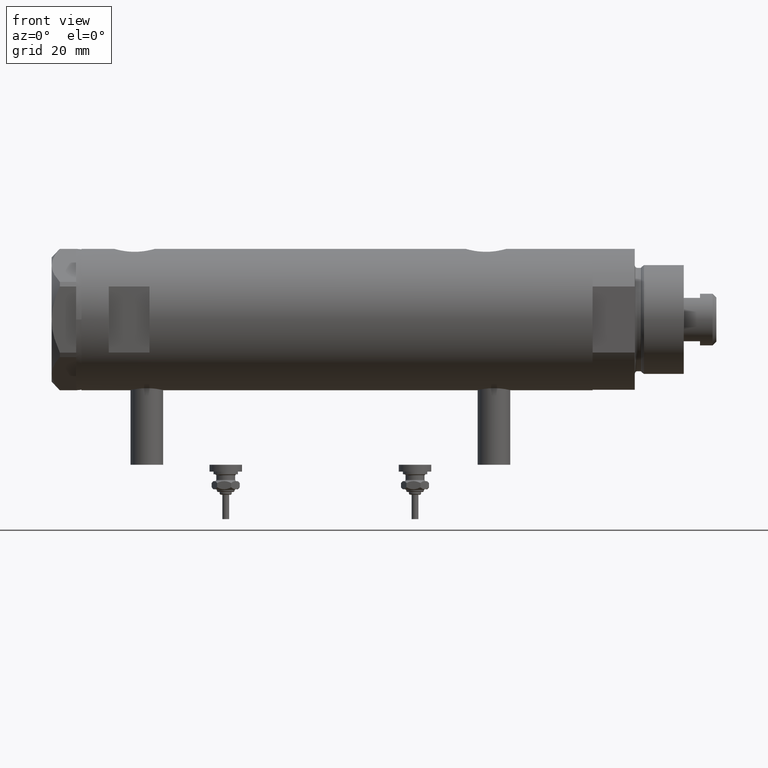
[diagram: clean part render]
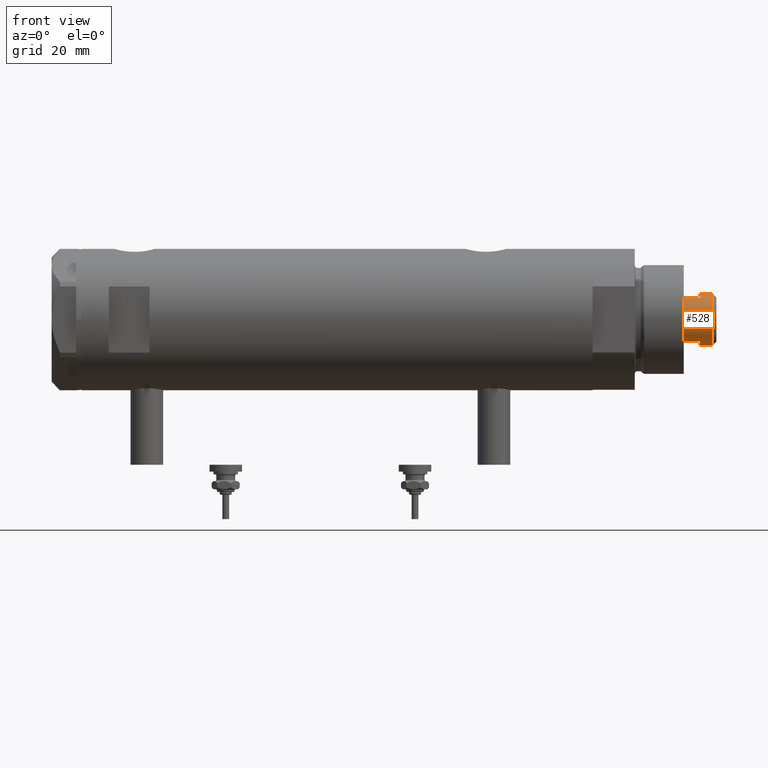
[diagram: same view with one face highlighted and labeled with its STEP entity id]
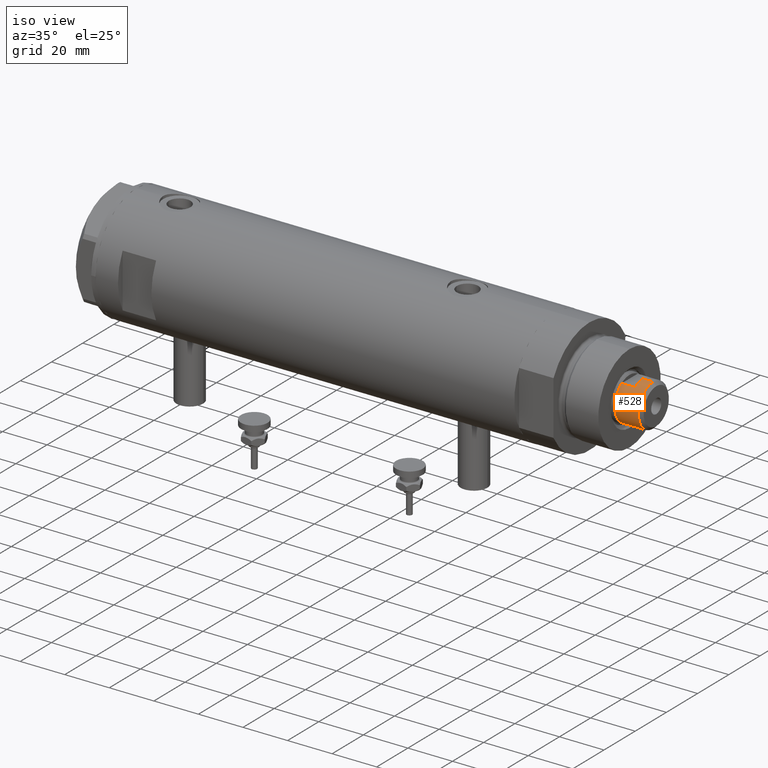
[diagram: same view with one face highlighted and labeled with its STEP entity id]
A machine part, front view. The second image highlights one B-rep face of the part: STEP entity #528.
A second angle (iso view) of the same face is appended — the face is thin or edge-on in the first view.
In plain terms, the highlighted cylindrical surface (edge-blend (fillet) strip) has radius 9.5 mm, axis along (-1, -0, 0).
Its self-contained STEP definition (entity closure, byte-faithful):
#13 = ORIENTED_EDGE ( 'NONE', *, *, #1958, .T. ) ;
#181 = CYLINDRICAL_SURFACE ( 'NONE', #5256, 9.500000000000001776 ) ;
#203 = VERTEX_POINT ( 'NONE', #5241 ) ;
#236 = DIRECTION ( 'NONE',  ( 0.000000000000000000, 0.000000000000000000, 1.000000000000000000 ) ) ;
#310 = CARTESIAN_POINT ( 'NONE',  ( -9.500000000000001776, 0.000000000000000000, 203.5999999999999943 ) ) ;
#468 = DIRECTION ( 'NONE',  ( 0.000000000000000000, 0.000000000000000000, 1.000000000000000000 ) ) ;
#479 = CARTESIAN_POINT ( 'NONE',  ( 0.000000000000000000, 0.000000000000000000, 208.2000000000000171 ) ) ;
#528 = ADVANCED_FACE ( 'NONE', ( #3166 ), #181, .T. ) ;
#665 = VERTEX_POINT ( 'NONE', #3346 ) ;
#715 = VERTEX_POINT ( 'NONE', #2262 ) ;
#750 = DIRECTION ( 'NONE',  ( -1.000000000000000000, 0.000000000000000000, 0.000000000000000000 ) ) ;
#785 = LINE ( 'NONE', #310, #2964 ) ;
#935 = CARTESIAN_POINT ( 'NONE',  ( -7.982950582334825462, -5.150000000000070521, 197.5999999999999943 ) ) ;
#974 = CARTESIAN_POINT ( 'NONE',  ( 0.000000000000000000, 0.000000000000000000, 203.5999999999999943 ) ) ;
#1122 = ORIENTED_EDGE ( 'NONE', *, *, #3782, .T. ) ;
#1340 = ORIENTED_EDGE ( 'NONE', *, *, #6105, .T. ) ;
#1411 = EDGE_CURVE ( 'NONE', #2721, #2344, #4136, .T. ) ;
#1537 = CARTESIAN_POINT ( 'NONE',  ( -7.982950582334829015, -5.150000000000001243, 203.5999999999999943 ) ) ;
#1562 = DIRECTION ( 'NONE',  ( 1.000000000000000000, 0.000000000000000000, 0.000000000000000000 ) ) ;
#1580 = CIRCLE ( 'NONE', #5582, 9.500000000000001776 ) ;
#1655 = CARTESIAN_POINT ( 'NONE',  ( -9.500000000000000000, 0.000000000000000000, 203.5999999999999943 ) ) ;
#1713 = EDGE_LOOP ( 'NONE', ( #3367, #2199, #1340, #4365, #1122, #13, #6239, #4659 ) ) ;
#1877 = CARTESIAN_POINT ( 'NONE',  ( 0.000000000000000000, 0.000000000000000000, 203.5999999999999943 ) ) ;
#1958 = EDGE_CURVE ( 'NONE', #6257, #665, #1580, .T. ) ;
#2024 = AXIS2_PLACEMENT_3D ( 'NONE', #1877, #5784, #3364 ) ;
#2199 = ORIENTED_EDGE ( 'NONE', *, *, #2456, .T. ) ;
#2211 = CIRCLE ( 'NONE', #4871, 9.500000000000001776 ) ;
#2237 = DIRECTION ( 'NONE',  ( -0.000000000000000000, -0.000000000000000000, -1.000000000000000000 ) ) ;
#2262 = CARTESIAN_POINT ( 'NONE',  ( 7.982950582334832568, -5.149999999999997691, 203.5999999999999943 ) ) ;
#2344 = VERTEX_POINT ( 'NONE', #5645 ) ;
#2444 = DIRECTION ( 'NONE',  ( 0.000000000000000000, 0.000000000000000000, -1.000000000000000000 ) ) ;
#2456 = EDGE_CURVE ( 'NONE', #203, #4037, #2211, .T. ) ;
#2544 = VECTOR ( 'NONE', #5647, 1000.000000000000000 ) ;
#2677 = CARTESIAN_POINT ( 'NONE',  ( 9.500000000000001776, 1.163414459189985682E-15, 203.5999999999999943 ) ) ;
#2721 = VERTEX_POINT ( 'NONE', #1655 ) ;
#2767 = DIRECTION ( 'NONE',  ( 1.000000000000000000, 0.000000000000000000, 0.000000000000000000 ) ) ;
#2964 = VECTOR ( 'NONE', #2237, 1000.000000000000000 ) ;
#3166 = FACE_OUTER_BOUND ( 'NONE', #1713, .T. ) ;
#3194 = CARTESIAN_POINT ( 'NONE',  ( 0.000000000000000000, 0.000000000000000000, 203.5999999999999943 ) ) ;
#3346 = CARTESIAN_POINT ( 'NONE',  ( 7.982950582334834344, -5.150000000000060751, 197.5999999999999943 ) ) ;
#3364 = DIRECTION ( 'NONE',  ( 1.000000000000000000, 0.000000000000000000, 0.000000000000000000 ) ) ;
#3367 = ORIENTED_EDGE ( 'NONE', *, *, #4580, .F. ) ;
#3429 = LINE ( 'NONE', #1537, #6194 ) ;
#3669 = CARTESIAN_POINT ( 'NONE',  ( 7.982950582334832568, -5.149999999999997691, 203.5999999999999943 ) ) ;
#3745 = CARTESIAN_POINT ( 'NONE',  ( 0.000000000000000000, 0.000000000000000000, 197.5999999999999943 ) ) ;
#3782 = EDGE_CURVE ( 'NONE', #2344, #6257, #3429, .T. ) ;
#3963 = CARTESIAN_POINT ( 'NONE',  ( -9.500000000000001776, 0.000000000000000000, 208.2000000000000171 ) ) ;
#4006 = DIRECTION ( 'NONE',  ( -0.000000000000000000, -0.000000000000000000, -1.000000000000000000 ) ) ;
#4037 = VERTEX_POINT ( 'NONE', #3963 ) ;
#4136 = CIRCLE ( 'NONE', #4956, 9.500000000000000000 ) ;
#4216 = DIRECTION ( 'NONE',  ( -0.000000000000000000, -0.000000000000000000, -1.000000000000000000 ) ) ;
#4365 = ORIENTED_EDGE ( 'NONE', *, *, #1411, .T. ) ;
#4580 = EDGE_CURVE ( 'NONE', #203, #5048, #5110, .T. ) ;
#4659 = ORIENTED_EDGE ( 'NONE', *, *, #5056, .T. ) ;
#4759 = DIRECTION ( 'NONE',  ( 1.000000000000000000, 0.000000000000000000, 0.000000000000000000 ) ) ;
#4783 = CIRCLE ( 'NONE', #2024, 9.500000000000000000 ) ;
#4833 = CARTESIAN_POINT ( 'NONE',  ( 9.500000000000000000, 1.163414459189985485E-15, 203.5999999999999943 ) ) ;
#4871 = AXIS2_PLACEMENT_3D ( 'NONE', #479, #2444, #1562 ) ;
#4956 = AXIS2_PLACEMENT_3D ( 'NONE', #974, #468, #4759 ) ;
#5048 = VERTEX_POINT ( 'NONE', #4833 ) ;
#5056 = EDGE_CURVE ( 'NONE', #715, #5048, #4783, .T. ) ;
#5110 = LINE ( 'NONE', #2677, #2544 ) ;
#5148 = DIRECTION ( 'NONE',  ( -0.000000000000000000, -0.000000000000000000, -1.000000000000000000 ) ) ;
#5241 = CARTESIAN_POINT ( 'NONE',  ( 9.500000000000001776, 1.163414459189985682E-15, 208.2000000000000171 ) ) ;
#5256 = AXIS2_PLACEMENT_3D ( 'NONE', #3194, #5148, #750 ) ;
#5582 = AXIS2_PLACEMENT_3D ( 'NONE', #3745, #236, #2767 ) ;
#5645 = CARTESIAN_POINT ( 'NONE',  ( -7.982950582334825462, -5.150000000000003020, 203.5999999999999943 ) ) ;
#5647 = DIRECTION ( 'NONE',  ( -0.000000000000000000, -0.000000000000000000, -1.000000000000000000 ) ) ;
#5685 = LINE ( 'NONE', #3669, #6018 ) ;
#5784 = DIRECTION ( 'NONE',  ( 0.000000000000000000, 0.000000000000000000, 1.000000000000000000 ) ) ;
#6018 = VECTOR ( 'NONE', #4216, 1000.000000000000000 ) ;
#6105 = EDGE_CURVE ( 'NONE', #4037, #2721, #785, .T. ) ;
#6139 = EDGE_CURVE ( 'NONE', #715, #665, #5685, .T. ) ;
#6194 = VECTOR ( 'NONE', #4006, 1000.000000000000000 ) ;
#6239 = ORIENTED_EDGE ( 'NONE', *, *, #6139, .F. ) ;
#6257 = VERTEX_POINT ( 'NONE', #935 ) ;